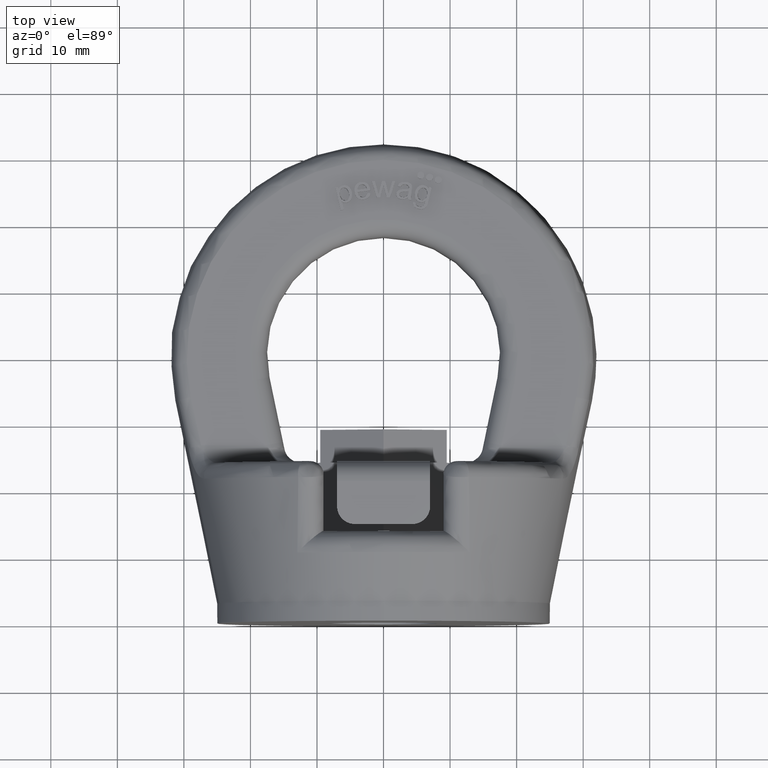
[diagram: clean part render]
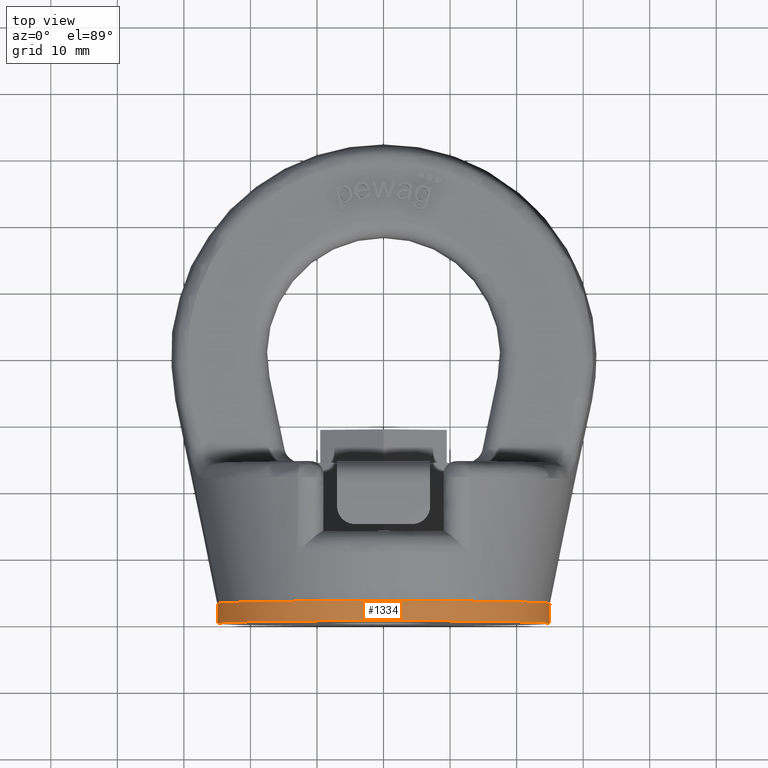
[diagram: same view with one face highlighted and labeled with its STEP entity id]
A machine part, top view. The second image highlights one B-rep face of the part: STEP entity #1334.
In plain terms, the highlighted cylindrical surface (bore or boss wall) has radius 25 mm, axis along (0, 1, 0).
Its self-contained STEP definition (entity closure, byte-faithful):
#1069=CYLINDRICAL_SURFACE('',#5141,25.0000000000001);
#1334=ADVANCED_FACE('',(#1785,#1786),#1069,.T.);
#1690=CIRCLE('',#5119,25.0000000000001);
#1700=CIRCLE('',#5139,25.0000000000001);
#1785=FACE_BOUND('',#1850,.T.);
#1786=FACE_BOUND('',#1851,.T.);
#1850=EDGE_LOOP('',(#2839));
#1851=EDGE_LOOP('',(#2840));
#2839=ORIENTED_EDGE('',*,*,#4388,.T.);
#2840=ORIENTED_EDGE('',*,*,#4342,.T.);
#3956=VERTEX_POINT('',#6684);
#3998=VERTEX_POINT('',#6850);
#4342=EDGE_CURVE('',#3956,#3956,#1690,.T.);
#4388=EDGE_CURVE('',#3998,#3998,#1700,.T.);
#5119=AXIS2_PLACEMENT_3D('',#6683,#5448,#5449);
#5139=AXIS2_PLACEMENT_3D('',#6849,#5516,#5517);
#5141=AXIS2_PLACEMENT_3D('',#6852,#5520,#5521);
#5448=DIRECTION('',(0.,-1.,0.));
#5449=DIRECTION('',(0.,0.,1.));
#5516=DIRECTION('',(0.,1.,0.));
#5517=DIRECTION('',(0.,0.,1.));
#5520=DIRECTION('',(0.,1.,0.));
#5521=DIRECTION('',(0.,0.,1.));
#6683=CARTESIAN_POINT('',(-1.27403500852703E-13,3.,1.44937300146023E-14));
#6684=CARTESIAN_POINT('',(-1.27403500852703E-13,3.,25.0000000000001));
#6849=CARTESIAN_POINT('',(-1.27403500852703E-13,0.,1.44937300146023E-14));
#6850=CARTESIAN_POINT('',(-1.27403500852703E-13,0.,25.0000000000001));
#6852=CARTESIAN_POINT('',(-1.27403500852703E-13,-0.3,1.44937300146023E-14));